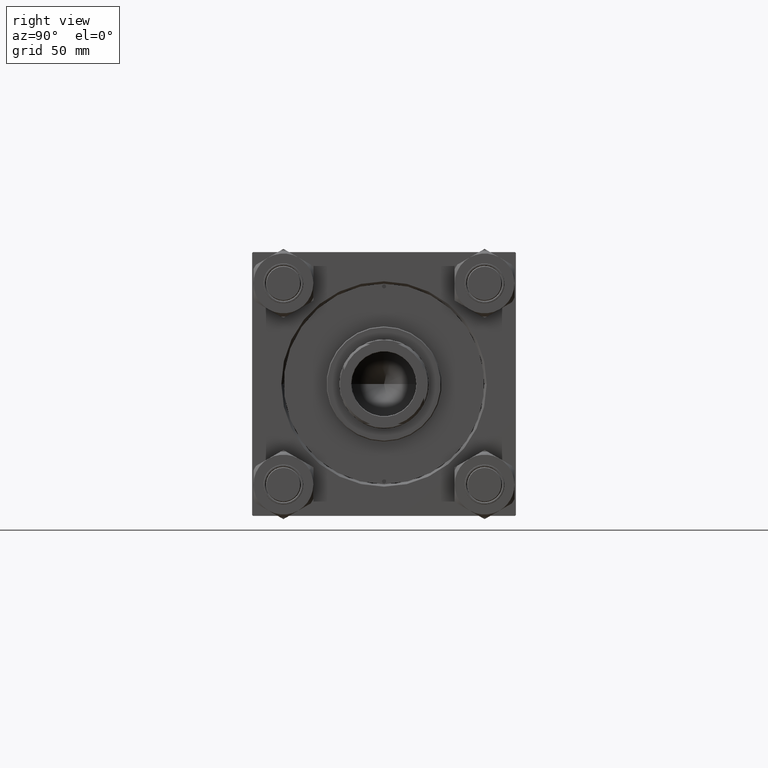
[diagram: clean part render]
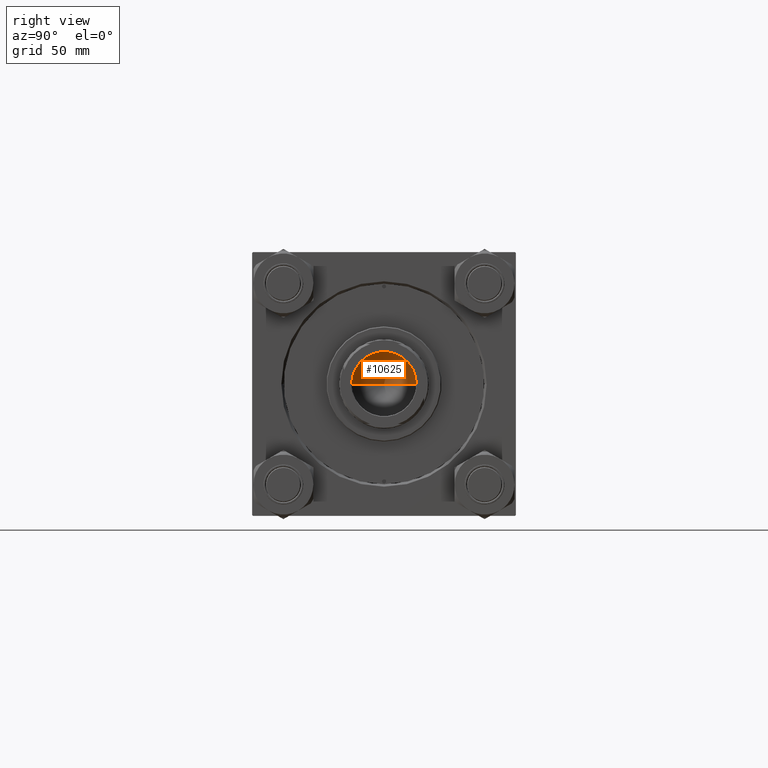
[diagram: same view with one face highlighted and labeled with its STEP entity id]
A machine part, right view. The second image highlights one B-rep face of the part: STEP entity #10625.
In plain terms, the highlighted conical surface has half-angle 59 deg.
Its self-contained STEP definition (entity closure, byte-faithful):
#198 = VERTEX_POINT ( 'NONE', #26421 ) ;
#6329 = CONICAL_SURFACE ( 'NONE', #12100, 20.24999999999998934, 1.029744258676652979 ) ;
#8674 = VERTEX_POINT ( 'NONE', #30822 ) ;
#8867 = EDGE_CURVE ( 'NONE', #8674, #198, #21826, .T. ) ;
#8896 = FACE_OUTER_BOUND ( 'NONE', #40581, .T. ) ;
#10625 = ADVANCED_FACE ( 'NONE', ( #8896 ), #6329, .F. ) ;
#12100 = AXIS2_PLACEMENT_3D ( 'NONE', #13255, #40972, #44317 ) ;
#12968 = DIRECTION ( 'NONE',  ( -0.8571673007021115565, 1.049727191138617710E-16, 0.5150380749100554878 ) ) ;
#13255 = CARTESIAN_POINT ( 'NONE',  ( 0.000000000000000000, 0.000000000000000000, 136.0000000000000000 ) ) ;
#14294 = EDGE_CURVE ( 'NONE', #44336, #198, #23483, .T. ) ;
#15548 = CARTESIAN_POINT ( 'NONE',  ( 20.24999999999998934, 0.000000000000000000, 136.0000000000000000 ) ) ;
#17470 = CARTESIAN_POINT ( 'NONE',  ( -1.584115414415908206E-14, 0.000000000000000000, 123.8325724646918786 ) ) ;
#20917 = LINE ( 'NONE', #25006, #48093 ) ;
#21826 = CIRCLE ( 'NONE', #25912, 20.24999999999998934 ) ;
#23316 = CARTESIAN_POINT ( 'NONE',  ( 0.000000000000000000, 0.000000000000000000, 136.0000000000000000 ) ) ;
#23483 = LINE ( 'NONE', #15548, #35986 ) ;
#23854 = ORIENTED_EDGE ( 'NONE', *, *, #14294, .F. ) ;
#25006 = CARTESIAN_POINT ( 'NONE',  ( -20.24999999999998934, 2.479909768273389117E-15, 136.0000000000000000 ) ) ;
#25912 = AXIS2_PLACEMENT_3D ( 'NONE', #23316, #27170, #35139 ) ;
#26421 = CARTESIAN_POINT ( 'NONE',  ( 20.24999999999998934, 0.000000000000000000, 136.0000000000000000 ) ) ;
#27170 = DIRECTION ( 'NONE',  ( -0.000000000000000000, -0.000000000000000000, 1.000000000000000000 ) ) ;
#28954 = EDGE_CURVE ( 'NONE', #44336, #8674, #20917, .T. ) ;
#30822 = CARTESIAN_POINT ( 'NONE',  ( -20.24999999999998934, 2.479909768273389117E-15, 136.0000000000000000 ) ) ;
#35139 = DIRECTION ( 'NONE',  ( 1.000000000000000000, 0.000000000000000000, 0.000000000000000000 ) ) ;
#35556 = DIRECTION ( 'NONE',  ( 0.8571673007021115565, 0.000000000000000000, 0.5150380749100554878 ) ) ;
#35986 = VECTOR ( 'NONE', #35556, 1000.000000000000000 ) ;
#40581 = EDGE_LOOP ( 'NONE', ( #23854, #41087, #42645 ) ) ;
#40972 = DIRECTION ( 'NONE',  ( -0.000000000000000000, -0.000000000000000000, 1.000000000000000000 ) ) ;
#41087 = ORIENTED_EDGE ( 'NONE', *, *, #28954, .T. ) ;
#42645 = ORIENTED_EDGE ( 'NONE', *, *, #8867, .T. ) ;
#44317 = DIRECTION ( 'NONE',  ( 1.000000000000000000, 0.000000000000000000, 0.000000000000000000 ) ) ;
#44336 = VERTEX_POINT ( 'NONE', #17470 ) ;
#48093 = VECTOR ( 'NONE', #12968, 1000.000000000000000 ) ;